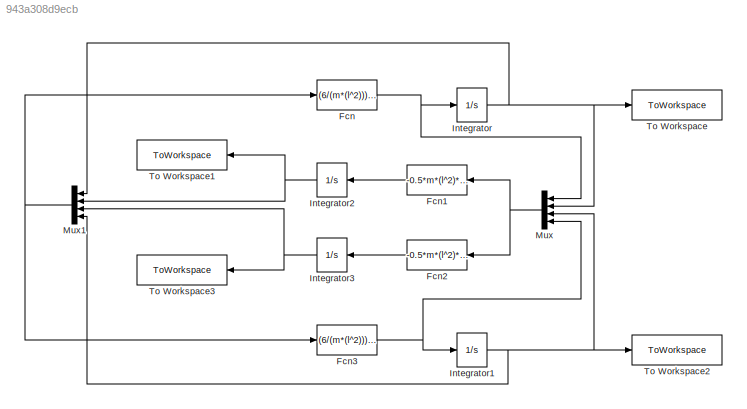
MODEL slx_943a308d9ecb
KIND model
CONFIG AbsTol = auto
CONFIG EnableMultiTasking = off
CONFIG FixedStep = auto
CONFIG MaxStep = auto
CONFIG MinStep = auto
CONFIG RelTol = reltol
CONFIG SampleTimeConstraint = Unconstrained
CONFIG Solver = VariableStepAuto
CONFIG SolverName = VariableStepAuto
CONFIG StartTime = 0.0
CONFIG StopTime = stop_time
BLOCK [Fcn] Fcn
  Expr = (6/(m*(l^2)))*((2*u(2)-3*cos(u(1)-u(4))*u(3))/(16-9*(cos(u(1)-u(4)))*(cos(u(1)-u(4)))))
BLOCK [Fcn] Fcn1
  Expr = -0.5*m*(l^2)*(u(1)*u(4)*sin(u(2)-u(3))+3*(g/l)*sin(u(2)))
BLOCK [Fcn] Fcn2
  Expr = -0.5*m*(l^2)*(-u(1)*u(4)*sin(u(2)-u(3))+(g/l)*sin(u(3)))
BLOCK [Fcn] Fcn3
  Expr = (6/(m*(l^2)))*((8*u(3)-3*cos(u(1)-u(4))*u(2))/(16-9*(cos(u(1)-u(4)))*(cos(u(1)-u(4)))))
BLOCK [Integrator] Integrator
  InitialCondition = theta1_0
  Ports = [1, 1]
BLOCK [Integrator] Integrator1
  InitialCondition = theta2_0
  Ports = [1, 1]
BLOCK [Integrator] Integrator2
  InitialCondition = p1_0
  Ports = [1, 1]
BLOCK [Integrator] Integrator3
  InitialCondition = p2_0
  Ports = [1, 1]
BLOCK [Mux] Mux
  DisplayOption = bar
  Ports = [4, 1]
BLOCK [Mux] Mux1
  DisplayOption = bar
  Ports = [4, 1]
BLOCK [ToWorkspace] To Workspace
  FixptAsFi = on
  MaxDataPoints = inf
  Ports = [1]
  SampleTime = -1
  VariableName = theta1
BLOCK [ToWorkspace] To Workspace1
  FixptAsFi = on
  MaxDataPoints = inf
  Ports = [1]
  SampleTime = -1
  VariableName = p1
BLOCK [ToWorkspace] To Workspace2
  FixptAsFi = on
  MaxDataPoints = inf
  Ports = [1]
  SampleTime = -1
  VariableName = theta2
BLOCK [ToWorkspace] To Workspace3
  FixptAsFi = on
  MaxDataPoints = inf
  Ports = [1]
  SampleTime = -1
  VariableName = p2
LINE Fcn1:1 -> Integrator2:1
LINE Fcn2:1 -> Integrator3:1
NET Fcn3:1 -> Integrator1:1, Mux:4
NET Fcn:1 -> Integrator:1, Mux:1
NET Integrator1:1 -> Mux1:4, Mux:3, To Workspace2:1
NET Integrator2:1 -> Mux1:2, To Workspace1:1
NET Integrator3:1 -> Mux1:3, To Workspace3:1
NET Integrator:1 -> Mux1:1, Mux:2, To Workspace:1
NET Mux1:1 -> Fcn3:1, Fcn:1
NET Mux:1 -> Fcn1:1, Fcn2:1
note: NET lines group one-source signal fan-out (src -> all destinations, sorted); 1:1 wires keep LINE
